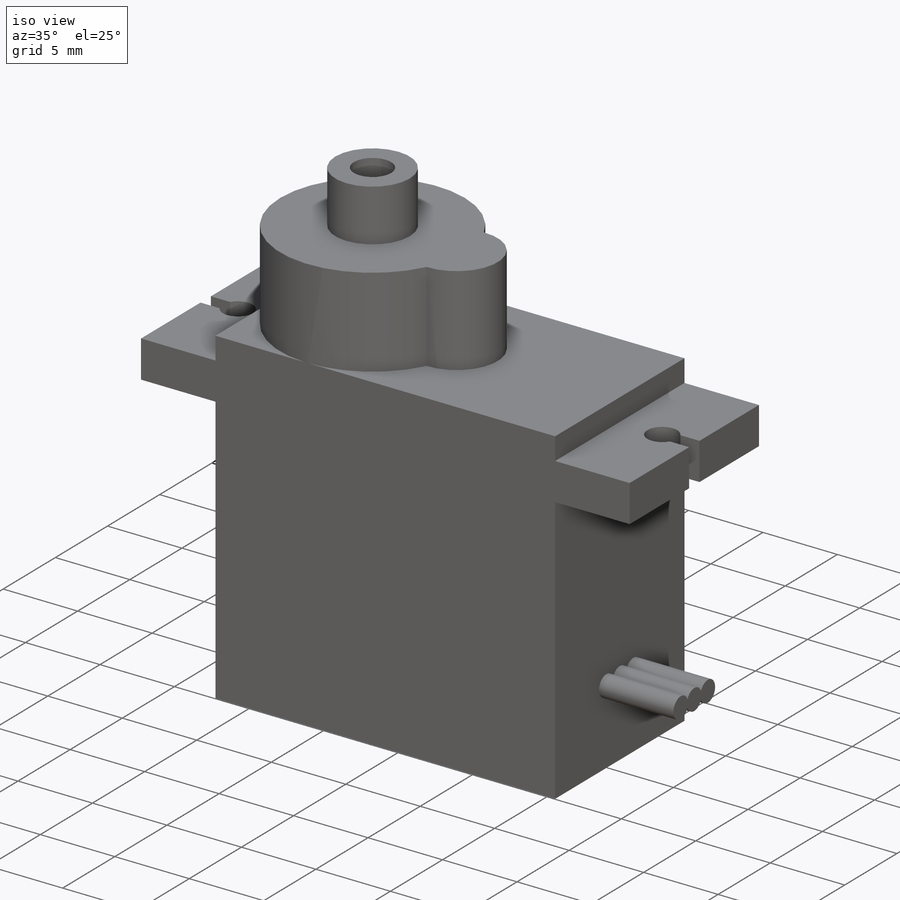
[diagram: iso view]
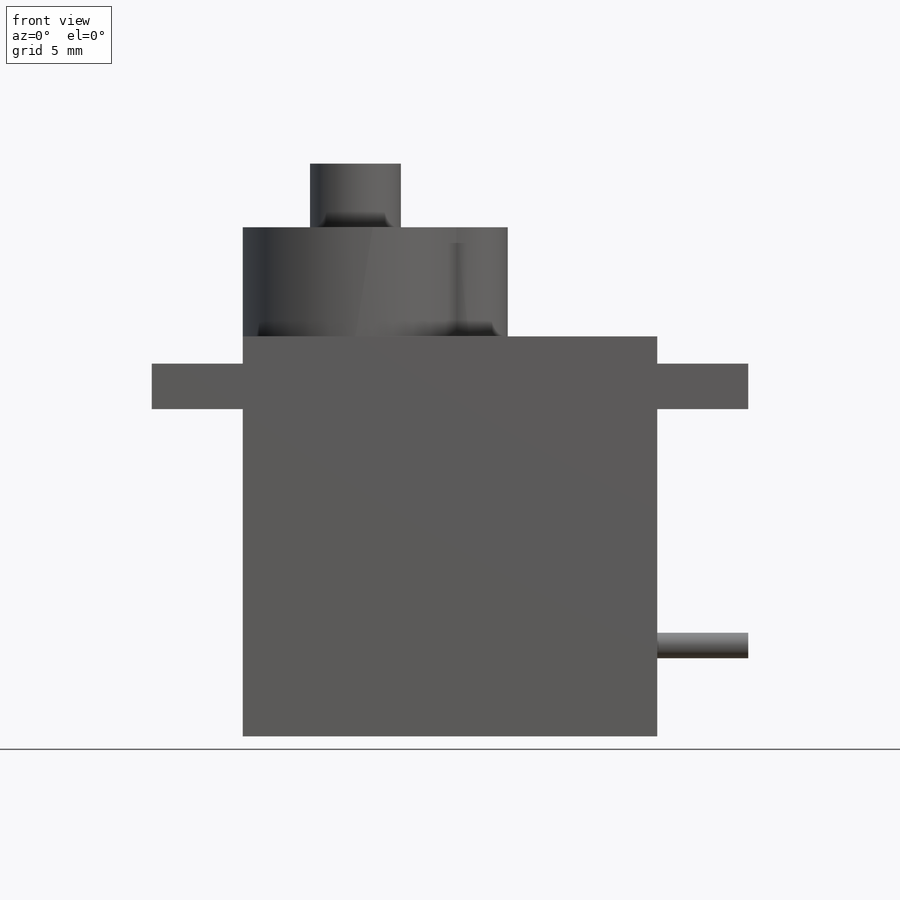
[diagram: front view]
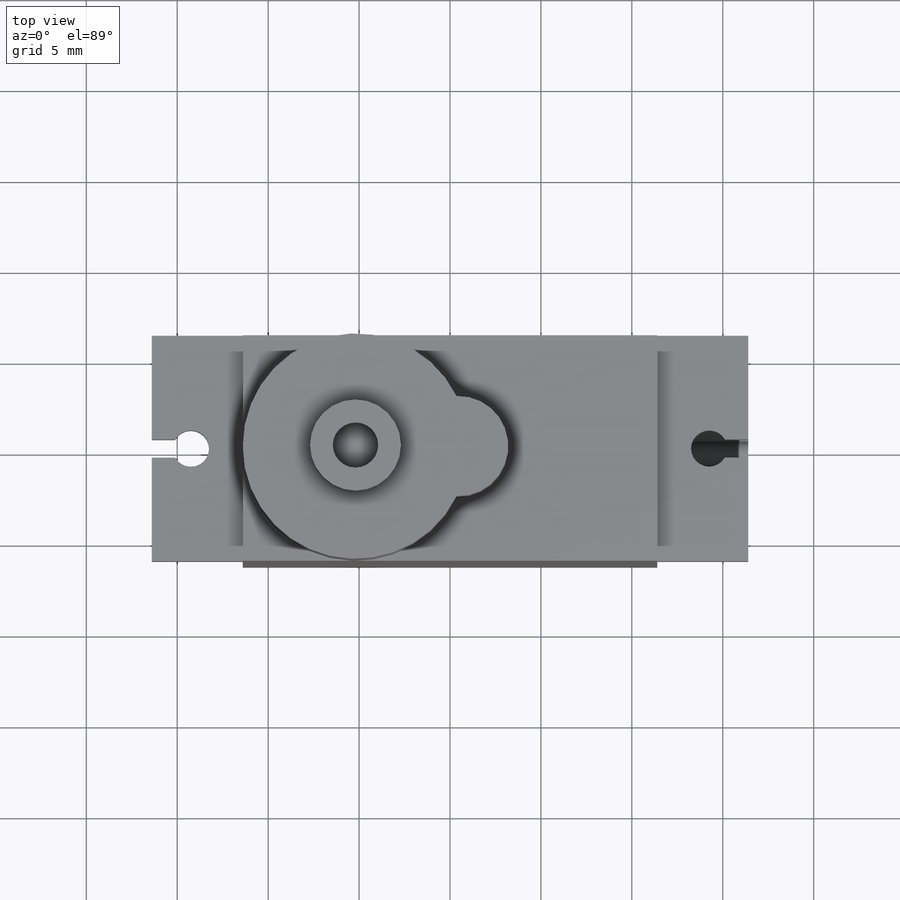
[diagram: top view]
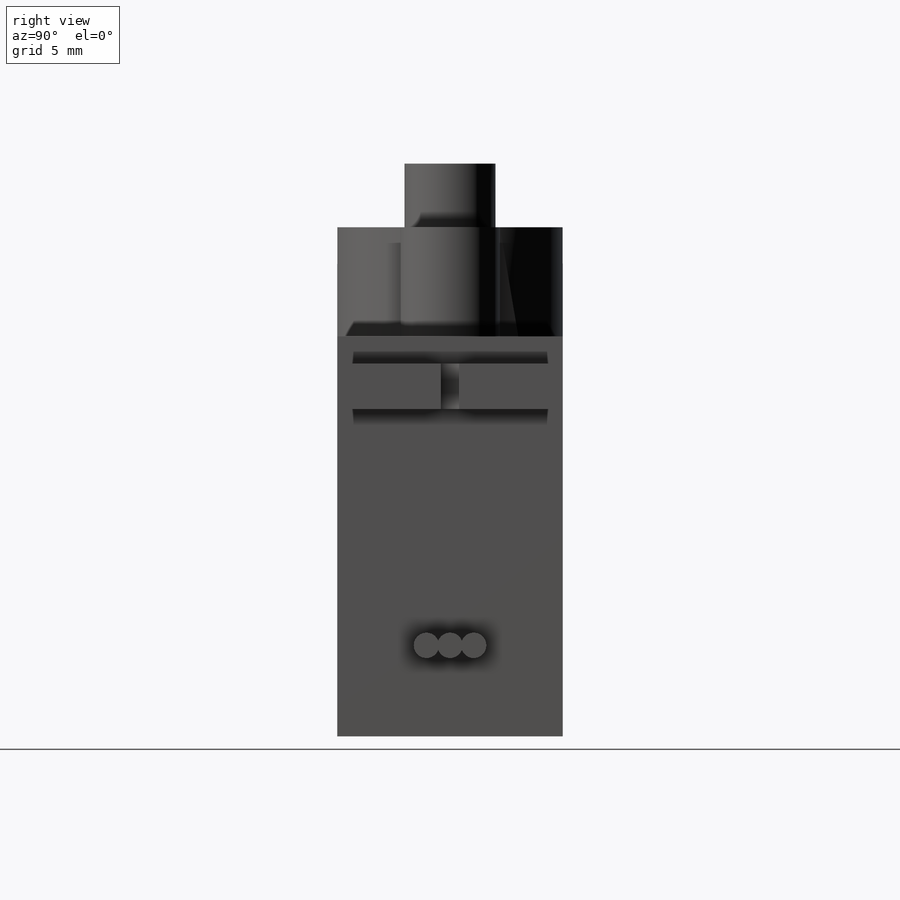
[diagram: right view]
SOLIDWORKS PART (.sldprt)
format: sldprt  version: not decoded by parser v0  size: 495,104 bytes
history: native  units: mm
features: sketch x6, extrude x5, material x1, plane x1, cut_extrude x1, mirror x1 (+12 scaffold rows collapsed)
feature tree (27):
  scaffold x12  (default folders/planes/origin — collapsed)
  material  "Material <not specified>"
  sketch  "Sketch1"  dims[D1=22.8mm D2=12.4mm]
  extrude  "Boss-Extrude1"  Depth=22mm
  sketch  "Sketch2"  dims[c1.D2=12.4mm c1.D1=5.5mm c2.D2=14.6mm]
  extrude  "Boss-Extrude3"  Depth=6mm
  sketch  "Sketch3"  dims[D1=5.0mm D2=2.5mm]
  extrude  "Boss-Extrude4"  Depth=3.5mm
  plane  "Plane1"  Offset=4mm
  sketch  "Sketch4"  dims[D2=1.0mm D1=5.0mm D3=1.0mm D4=14.25mm]
  extrude  "Boss-Extrude5"  Depth=2.5mm
  sketch  "Sketch5"  dims[D1=1.0mm]
  cut_extrude  "Cut-Extrude1"  Depth=1mm
  mirror  "Mirror1"
  sketch  "Sketch6"  dims[D1=~3.124702mm D2=2.0mm D3=5.0mm]
  extrude  "Boss-Extrude6"  Depth=5mm
decode coverage: 12 of 13 modeling features carry decoded parameters
note: ~ marks probable driven/reference dimensions
note: suppression state not decoded; provenance and decode notes live in map.json
